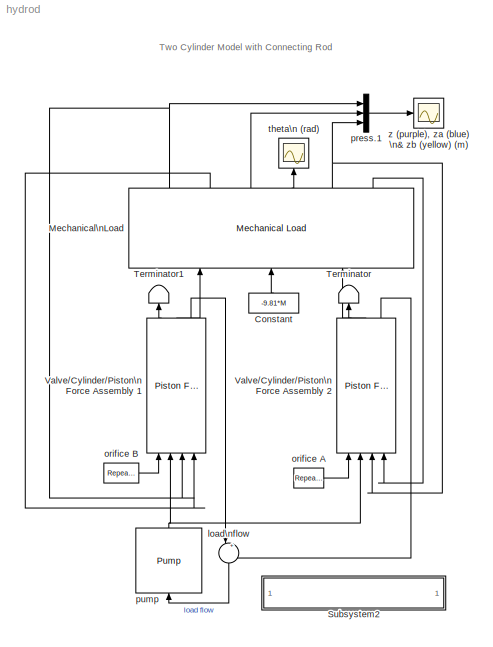
MODEL hydrod
KIND model
CONFIG PreLoadFcn = load newhcd
BLOCK [Constant] Constant
  Value = -9.81*M
BLOCK [Reference] Mechanical\nLoad  REF=hydlib/Mechanical Load  (lib defined in mdl_a1138ae370f5)
  I = I
  L = L
  M = M
  Ports = [3, 6]
  ShowPortLabels = on
  SourceBlock = hydlib/Mechanical Load
  SourceType = Rod
BLOCK [SubSystem] Subsystem2
  MaskDisplay = disp('Double click to run the\\nSimulation for 0.1 seconds')
  MaskIconFrame = on
  MaskIconOpaque = on
  MaskIconRotate = none
  MaskIconUnits = autoscale
  MaskType = Button
  MinAlgLoopOccurrences = off
  OpenFcn = sim(get_param(0, 'CurrentSystem'), 0.1)
  Ports = []
  PropExecContextAcrossSSBoundary = on
  RTWSystemCode = Auto
  ShowPortLabels = off
  TreatAsAtomicUnit = off
BLOCK [Terminator] Terminator
BLOCK [Terminator] Terminator1
BLOCK [Reference] Valve//Cylinder//Piston\n Force Assembly 1  REF=hydlib/Valve//Cylinder//Piston Force Assembly  (lib defined in mdl_a1138ae370f5)
  Ac = Ac
  C1 = C1
  Cd = Cd
  Ports = [4, 3]
  ShowPortLabels = on
  SourceBlock = hydlib/Valve//Cylinder//Piston Force Assembly
  SourceType = ValveCylinderPistonForceAssy
  V30 = V30
  beta = Beta
  p30 = 9.81*M/2/Ac
  rho = rho
BLOCK [Reference] Valve//Cylinder//Piston\n Force Assembly 2  REF=hydlib/Valve//Cylinder//Piston Force Assembly  (lib defined in mdl_a1138ae370f5)
  Ac = Ac
  C1 = C1
  Cd = Cd
  Ports = [4, 3]
  ShowPortLabels = on
  SourceBlock = hydlib/Valve//Cylinder//Piston Force Assembly
  SourceType = ValveCylinderPistonForceAssy
  V30 = V30
  beta = Beta
  p30 = 9.81*M/2/Ac
  rho = rho
BLOCK [Sum] load\nflow
  IconShape = round
  Inputs = |++
  Ports = [2, 1]
BLOCK [Reference] orifice A  REF=simulink/Sources/Repeating\nSequence
  Ports = [0, 1]
  ShowPortLabels = on
  SourceBlock = simulink/Sources/Repeating\nSequence
  SourceType = Repeating table
  rep_seq_t = [0  0.1  0.2]/10
  rep_seq_y = [1 0 1]*1e-5
BLOCK [Reference] orifice B  REF=simulink/Sources/Repeating\nSequence
  Ports = [0, 1]
  ShowPortLabels = on
  SourceBlock = simulink/Sources/Repeating\nSequence
  SourceType = Repeating table
  rep_seq_t = [0 0.1 0.2]/10
  rep_seq_y = [0 1 0]*1e-5
BLOCK [Mux] press.1
  DisplayOption = bar
  Inputs = 3
  Ports = [3, 1]
BLOCK [Reference] pump  REF=hydlib/Pump  (lib defined in mdl_a1138ae370f5)
  C2 = C2/10
  Ports = [1, 1]
  Qpump = Qmax*[1 1]
  ShowPortLabels = on
  SourceBlock = hydlib/Pump
  SourceType = Pump
  p10 = 9.81*M/2/Ac
  t = [0        .04]
BLOCK [Scope] theta\n (rad)
  DataFormat = Array
  NumInputPorts = 1
  Ports = [1]
  TickLabels = on
  TimeRange = 0.1
  YMax = 0.0005
  YMin = -0.0015
BLOCK [Scope] z (purple), za (blue) \n& zb (yellow) (m)
  DataFormat = Array
  LimitDataPoints = off
  NumInputPorts = 1
  Ports = [1]
  TickLabels = on
  TimeRange = 0.1
  YMax = 0.015
  YMin = -0.005
ANNOTATION (root): Two Cylinder Model with Connecting Rod
LINE Constant:1 -> Mechanical\nLoad:2
NET Mechanical\nLoad:1 -> Valve//Cylinder//Piston\n Force Assembly 1:3, press.1:1
LINE Mechanical\nLoad:2 -> Valve//Cylinder//Piston\n Force Assembly 1:4
LINE Mechanical\nLoad:3 -> press.1:2
LINE Mechanical\nLoad:4 -> theta\n (rad):1
NET Mechanical\nLoad:5 -> Valve//Cylinder//Piston\n Force Assembly 2:3, press.1:3
LINE Mechanical\nLoad:6 -> Valve//Cylinder//Piston\n Force Assembly 2:4
LINE Valve//Cylinder//Piston\n Force Assembly 1:1 -> Terminator1:1
LINE Valve//Cylinder//Piston\n Force Assembly 1:2 -> Mechanical\nLoad:1
LINE Valve//Cylinder//Piston\n Force Assembly 1:3 -> load\nflow:1
LINE Valve//Cylinder//Piston\n Force Assembly 2:1 -> Terminator:1
LINE Valve//Cylinder//Piston\n Force Assembly 2:2 -> Mechanical\nLoad:3
LINE Valve//Cylinder//Piston\n Force Assembly 2:3 -> load\nflow:2
LINE load\nflow:1 -> pump:1
LINE orifice A:1 -> Valve//Cylinder//Piston\n Force Assembly 2:1
LINE orifice B:1 -> Valve//Cylinder//Piston\n Force Assembly 1:1
LINE press.1:1 -> z (purple), za (blue) \n& zb (yellow) (m):1
NET pump:1 -> Valve//Cylinder//Piston\n Force Assembly 1:2, Valve//Cylinder//Piston\n Force Assembly 2:2
note: NET lines group one-source signal fan-out (src -> all destinations, sorted); 1:1 wires keep LINE
